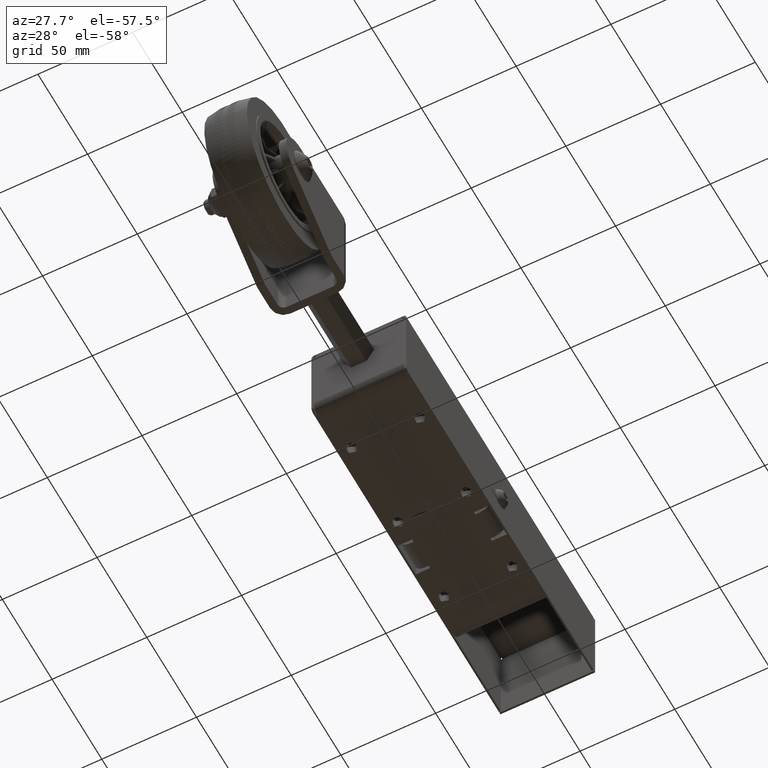
[diagram: clean part render]
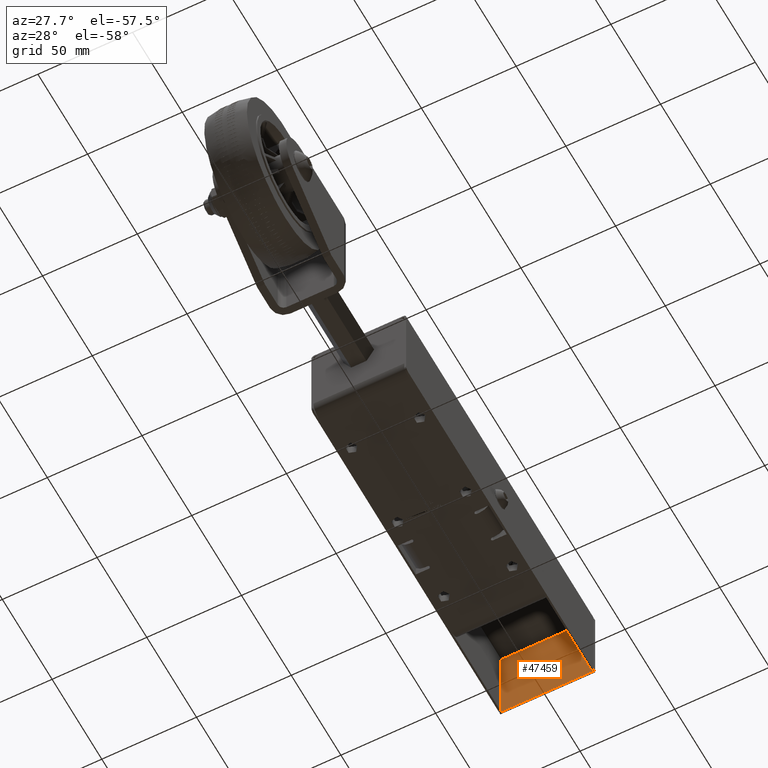
[diagram: same view with one face highlighted and labeled with its STEP entity id]
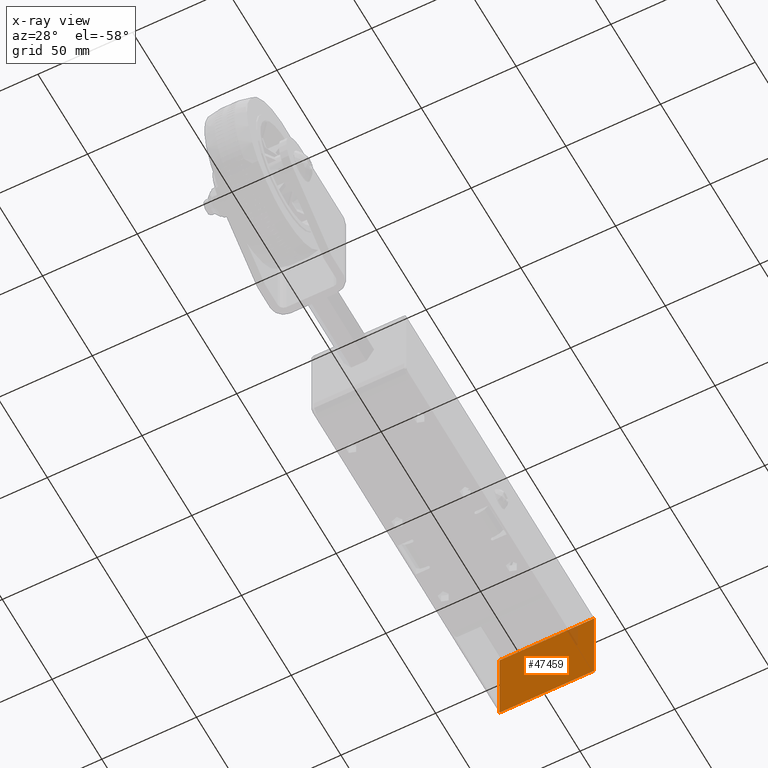
[diagram: x-ray of the same camera — body ghosted, the highlighted face saturated]
A machine part, auxiliary view. The second image highlights one B-rep face of the part: STEP entity #47459.
The next image is the same camera in x-ray: the body ghosted, the highlighted face saturated — about 3% of this face is hidden behind the body in this view.
In plain terms, the highlighted planar face has unit normal (0, -1, -0).
Its self-contained STEP definition (entity closure, byte-faithful):
#585 = CARTESIAN_POINT ( 'NONE',  ( 0.0000000000000000000, 94.00000000000000000, 3.122502256758252800E-013 ) ) ;
#841 = ORIENTED_EDGE ( 'NONE', *, *, #51548, .F. ) ;
#2551 = LINE ( 'NONE', #62615, #73743 ) ;
#3662 = CARTESIAN_POINT ( 'NONE',  ( -25.00000000000000000, 94.00000000000015600, -46.00000000000003600 ) ) ;
#5380 = CARTESIAN_POINT ( 'NONE',  ( -25.00000000000000000, 94.00000000000015600, -46.00000000000003600 ) ) ;
#6320 = EDGE_CURVE ( 'NONE', #60947, #63747, #27434, .T. ) ;
#6836 = VERTEX_POINT ( 'NONE', #21884 ) ;
#7837 = VERTEX_POINT ( 'NONE', #10577 ) ;
#8499 = ORIENTED_EDGE ( 'NONE', *, *, #26361, .F. ) ;
#9536 = DIRECTION ( 'NONE',  ( 1.000000000000000000, 0.0000000000000000000, 0.0000000000000000000 ) ) ;
#10577 = CARTESIAN_POINT ( 'NONE',  ( -25.00000000000000000, 94.00000000000000000, -0.5000000000000282000 ) ) ;
#11551 = EDGE_CURVE ( 'NONE', #6836, #60947, #48995, .T. ) ;
#13359 = CARTESIAN_POINT ( 'NONE',  ( -25.00000000000000000, 94.00000000000000000, -0.5000000000000282000 ) ) ;
#15360 = CARTESIAN_POINT ( 'NONE',  ( -25.00000000000000000, 94.00000000000000000, -0.5000000000000282000 ) ) ;
#16014 = FACE_OUTER_BOUND ( 'NONE', #25821, .T. ) ;
#18336 = DIRECTION ( 'NONE',  ( -1.000000000000000000, -0.0000000000000000000, -0.0000000000000000000 ) ) ;
#21884 = CARTESIAN_POINT ( 'NONE',  ( -23.50000000000000000, 94.00000000000000000, -0.5000000000000282000 ) ) ;
#23920 = EDGE_CURVE ( 'NONE', #7837, #6836, #50256, .T. ) ;
#25821 = EDGE_LOOP ( 'NONE', ( #8499, #62932, #27690, #54300, #26529, #841 ) ) ;
#26361 = EDGE_CURVE ( 'NONE', #63747, #38387, #39686, .T. ) ;
#26529 = ORIENTED_EDGE ( 'NONE', *, *, #64945, .F. ) ;
#27434 = LINE ( 'NONE', #15360, #59693 ) ;
#27690 = ORIENTED_EDGE ( 'NONE', *, *, #11551, .F. ) ;
#29713 = DIRECTION ( 'NONE',  ( 0.0000000000000000000, -1.000000000000000000, -3.318601432303456900E-015 ) ) ;
#31966 = LINE ( 'NONE', #5380, #50889 ) ;
#35917 = VECTOR ( 'NONE', #69713, 1000.000000000000000 ) ;
#36376 = DIRECTION ( 'NONE',  ( 0.0000000000000000000, 3.318601432303456900E-015, -1.000000000000000000 ) ) ;
#38387 = VERTEX_POINT ( 'NONE', #65851 ) ;
#39268 = VERTEX_POINT ( 'NONE', #3662 ) ;
#39686 = LINE ( 'NONE', #45304, #35917 ) ;
#40171 = DIRECTION ( 'NONE',  ( 1.000000000000000000, 0.0000000000000000000, 0.0000000000000000000 ) ) ;
#45304 = CARTESIAN_POINT ( 'NONE',  ( 25.00000000000000000, 94.00000000000015600, -46.00000000000003600 ) ) ;
#47459 = ADVANCED_FACE ( 'NONE', ( #16014 ), #67106, .T. ) ;
#48995 = LINE ( 'NONE', #13359, #68049 ) ;
#50256 = LINE ( 'NONE', #76496, #51225 ) ;
#50404 = AXIS2_PLACEMENT_3D ( 'NONE', #585, #29713, #36376 ) ;
#50889 = VECTOR ( 'NONE', #18336, 1000.000000000000000 ) ;
#51225 = VECTOR ( 'NONE', #40171, 1000.000000000000000 ) ;
#51548 = EDGE_CURVE ( 'NONE', #38387, #39268, #31966, .T. ) ;
#54300 = ORIENTED_EDGE ( 'NONE', *, *, #23920, .F. ) ;
#59693 = VECTOR ( 'NONE', #9536, 1000.000000000000000 ) ;
#60947 = VERTEX_POINT ( 'NONE', #65143 ) ;
#61210 = CARTESIAN_POINT ( 'NONE',  ( 25.00000000000000000, 94.00000000000000000, -0.5000000000000282000 ) ) ;
#62321 = DIRECTION ( 'NONE',  ( 1.000000000000000000, 0.0000000000000000000, 0.0000000000000000000 ) ) ;
#62615 = CARTESIAN_POINT ( 'NONE',  ( -25.00000000000000000, 94.00000000000000000, -2.775557561562891400E-014 ) ) ;
#62932 = ORIENTED_EDGE ( 'NONE', *, *, #6320, .F. ) ;
#63747 = VERTEX_POINT ( 'NONE', #61210 ) ;
#64945 = EDGE_CURVE ( 'NONE', #39268, #7837, #2551, .T. ) ;
#65143 = CARTESIAN_POINT ( 'NONE',  ( 23.50000000000000000, 94.00000000000000000, -0.5000000000000282000 ) ) ;
#65851 = CARTESIAN_POINT ( 'NONE',  ( 25.00000000000000000, 94.00000000000015600, -46.00000000000003600 ) ) ;
#67106 = PLANE ( 'NONE',  #50404 ) ;
#68049 = VECTOR ( 'NONE', #62321, 1000.000000000000000 ) ;
#69713 = DIRECTION ( 'NONE',  ( -0.0000000000000000000, 3.318601432303456900E-015, -1.000000000000000000 ) ) ;
#70074 = DIRECTION ( 'NONE',  ( -0.0000000000000000000, -3.318601432303456900E-015, 1.000000000000000000 ) ) ;
#73743 = VECTOR ( 'NONE', #70074, 1000.000000000000000 ) ;
#76496 = CARTESIAN_POINT ( 'NONE',  ( -25.00000000000000000, 94.00000000000000000, -0.5000000000000282000 ) ) ;